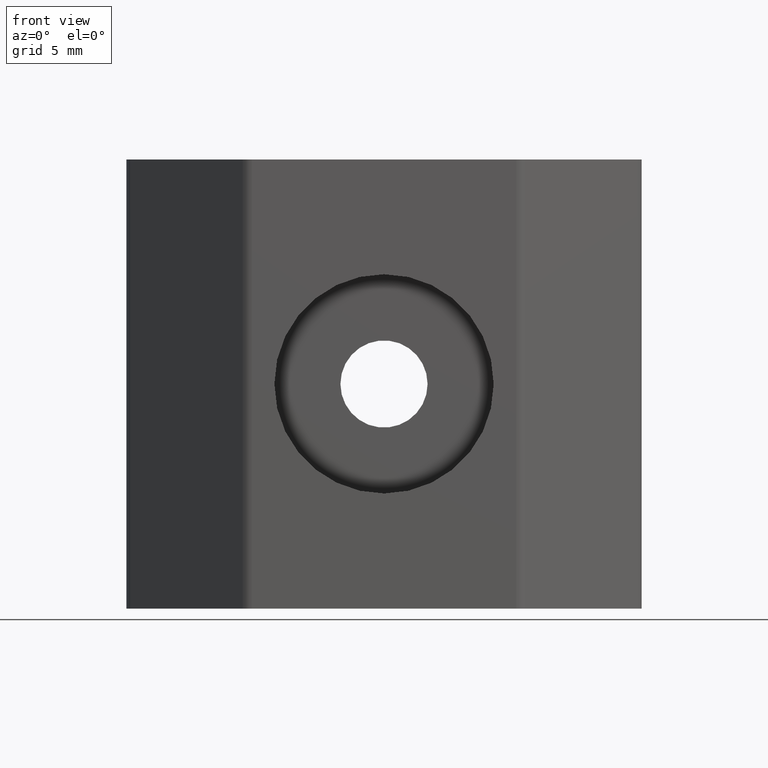
[diagram: clean part render]
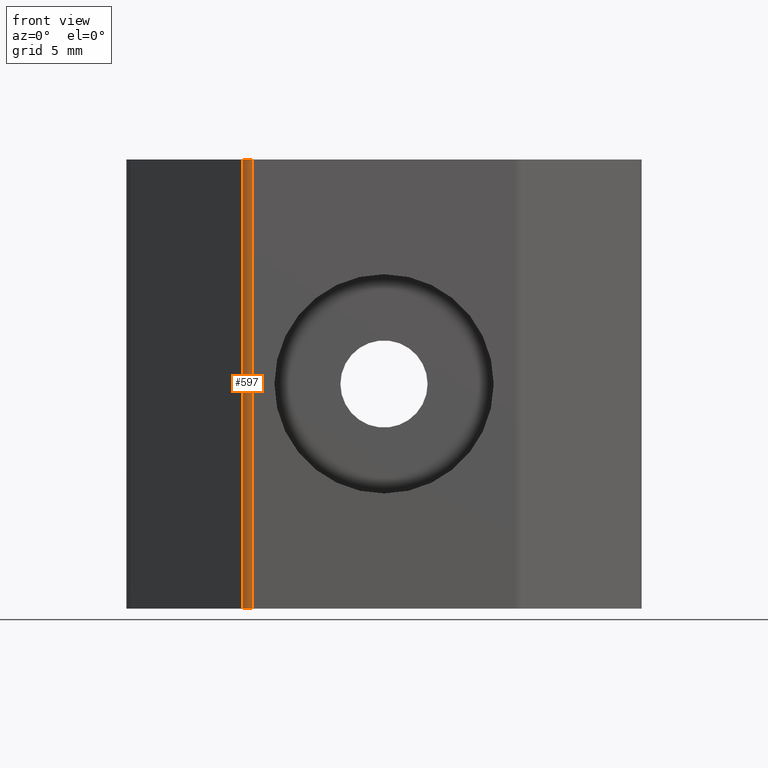
[diagram: same view with one face highlighted and labeled with its STEP entity id]
A machine part, front view. The second image highlights one B-rep face of the part: STEP entity #597.
In plain terms, the highlighted cylindrical surface (edge-blend (fillet) strip) has radius 1 mm, axis along (0, 0, 1).
Its self-contained STEP definition (entity closure, byte-faithful):
#10 = AXIS2_PLACEMENT_3D ( 'NONE', #319, #799, #186 ) ;
#31 = DIRECTION ( 'NONE',  ( 0.000000000000000000, 0.000000000000000000, -1.000000000000000000 ) ) ;
#48 = DIRECTION ( 'NONE',  ( 0.000000000000000000, 0.000000000000000000, -1.000000000000000000 ) ) ;
#121 = VERTEX_POINT ( 'NONE', #1193 ) ;
#186 = DIRECTION ( 'NONE',  ( 1.000000000000000000, 0.000000000000000000, 0.000000000000000000 ) ) ;
#190 = EDGE_CURVE ( 'NONE', #1384, #1415, #1624, .T. ) ;
#227 = ORIENTED_EDGE ( 'NONE', *, *, #190, .F. ) ;
#319 = CARTESIAN_POINT ( 'NONE',  ( -10.00000000000000000, -8.546327330299515523, -16.99999999999994671 ) ) ;
#347 = CYLINDRICAL_SURFACE ( 'NONE', #956, 0.9999999999999991118 ) ;
#355 = CARTESIAN_POINT ( 'NONE',  ( -10.00000000000000000, -9.546327330299517300, 17.00000000000005684 ) ) ;
#441 = DIRECTION ( 'NONE',  ( 0.000000000000000000, 0.000000000000000000, 1.000000000000000000 ) ) ;
#442 = CARTESIAN_POINT ( 'NONE',  ( -10.00000000000000000, -8.546327330299515523, 17.00000000000005684 ) ) ;
#537 = CARTESIAN_POINT ( 'NONE',  ( -10.00000000000000000, -9.546327330299517300, -16.99999999999994671 ) ) ;
#548 = EDGE_CURVE ( 'NONE', #1415, #1214, #940, .T. ) ;
#567 = AXIS2_PLACEMENT_3D ( 'NONE', #442, #967, #1449 ) ;
#576 = CARTESIAN_POINT ( 'NONE',  ( -10.70710678118000025, -9.253434111479510449, 17.00000000000005684 ) ) ;
#597 = ADVANCED_FACE ( 'NONE', ( #698 ), #347, .T. ) ;
#648 = EDGE_CURVE ( 'NONE', #121, #1214, #1093, .T. ) ;
#662 = VECTOR ( 'NONE', #48, 1000.000000000000000 ) ;
#698 = FACE_OUTER_BOUND ( 'NONE', #864, .T. ) ;
#775 = LINE ( 'NONE', #1566, #1404 ) ;
#799 = DIRECTION ( 'NONE',  ( 0.000000000000000000, 0.000000000000000000, 1.000000000000000000 ) ) ;
#829 = DIRECTION ( 'NONE',  ( 1.000000000000000000, 0.000000000000000000, 0.000000000000000000 ) ) ;
#864 = EDGE_LOOP ( 'NONE', ( #227, #1303, #1041, #877 ) ) ;
#877 = ORIENTED_EDGE ( 'NONE', *, *, #548, .F. ) ;
#940 = LINE ( 'NONE', #1564, #662 ) ;
#956 = AXIS2_PLACEMENT_3D ( 'NONE', #1077, #441, #829 ) ;
#967 = DIRECTION ( 'NONE',  ( 0.000000000000000000, 0.000000000000000000, 1.000000000000000000 ) ) ;
#1041 = ORIENTED_EDGE ( 'NONE', *, *, #648, .T. ) ;
#1077 = CARTESIAN_POINT ( 'NONE',  ( -10.00000000000000000, -8.546327330299515523, 17.00000000000005684 ) ) ;
#1093 = CIRCLE ( 'NONE', #10, 0.9999999999999991118 ) ;
#1193 = CARTESIAN_POINT ( 'NONE',  ( -10.70710678118000025, -9.253434111479510449, -16.99999999999994671 ) ) ;
#1214 = VERTEX_POINT ( 'NONE', #537 ) ;
#1285 = EDGE_CURVE ( 'NONE', #1384, #121, #775, .T. ) ;
#1303 = ORIENTED_EDGE ( 'NONE', *, *, #1285, .T. ) ;
#1384 = VERTEX_POINT ( 'NONE', #576 ) ;
#1404 = VECTOR ( 'NONE', #31, 1000.000000000000000 ) ;
#1415 = VERTEX_POINT ( 'NONE', #355 ) ;
#1449 = DIRECTION ( 'NONE',  ( 1.000000000000000000, 0.000000000000000000, 0.000000000000000000 ) ) ;
#1564 = CARTESIAN_POINT ( 'NONE',  ( -10.00000000000000000, -9.546327330299517300, 17.00000000000005684 ) ) ;
#1566 = CARTESIAN_POINT ( 'NONE',  ( -10.70710678118000025, -9.253434111479510449, 17.00000000000005684 ) ) ;
#1624 = CIRCLE ( 'NONE', #567, 0.9999999999999991118 ) ;